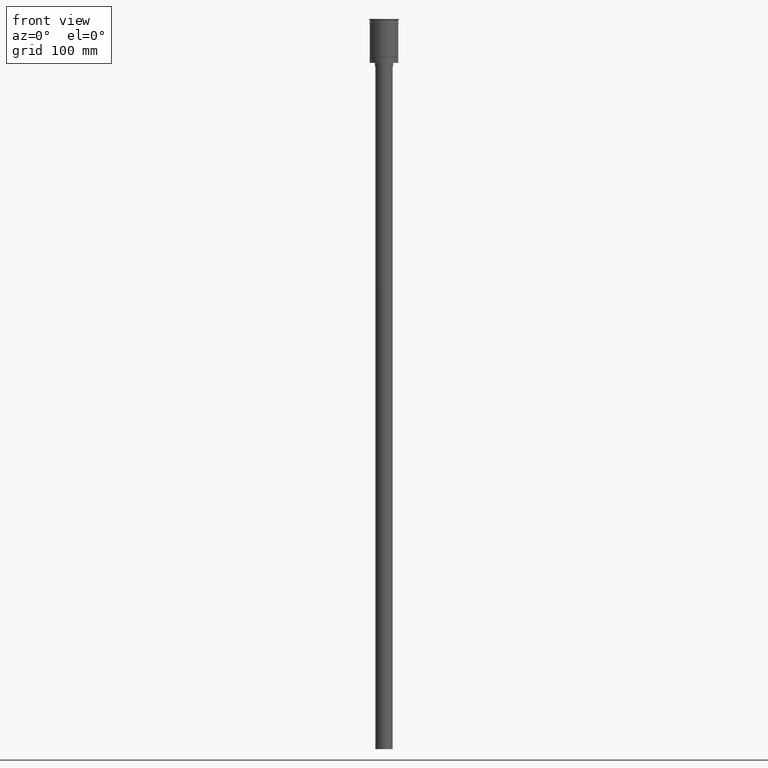
[diagram: clean part render]
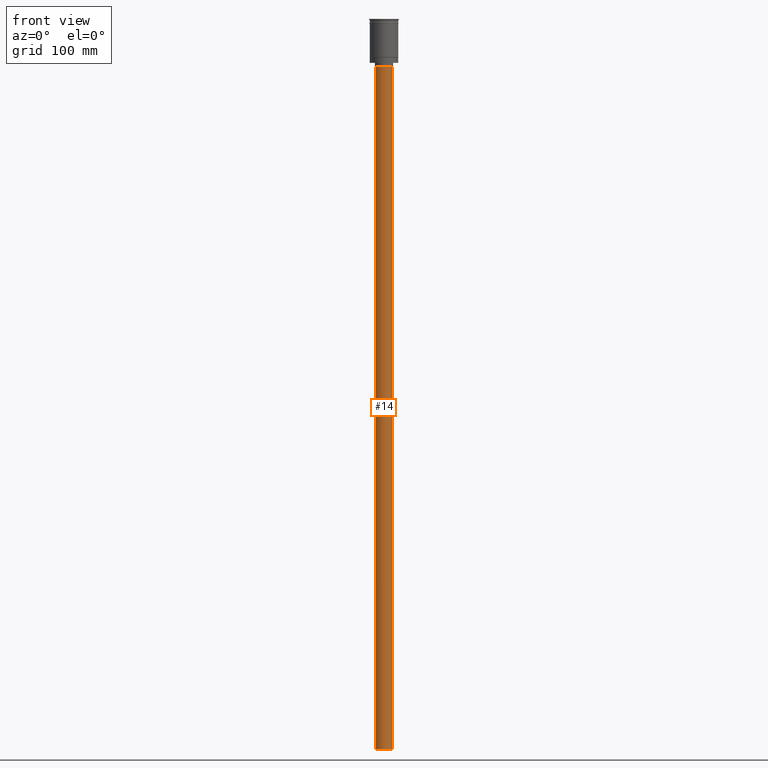
[diagram: same view with one face highlighted and labeled with its STEP entity id]
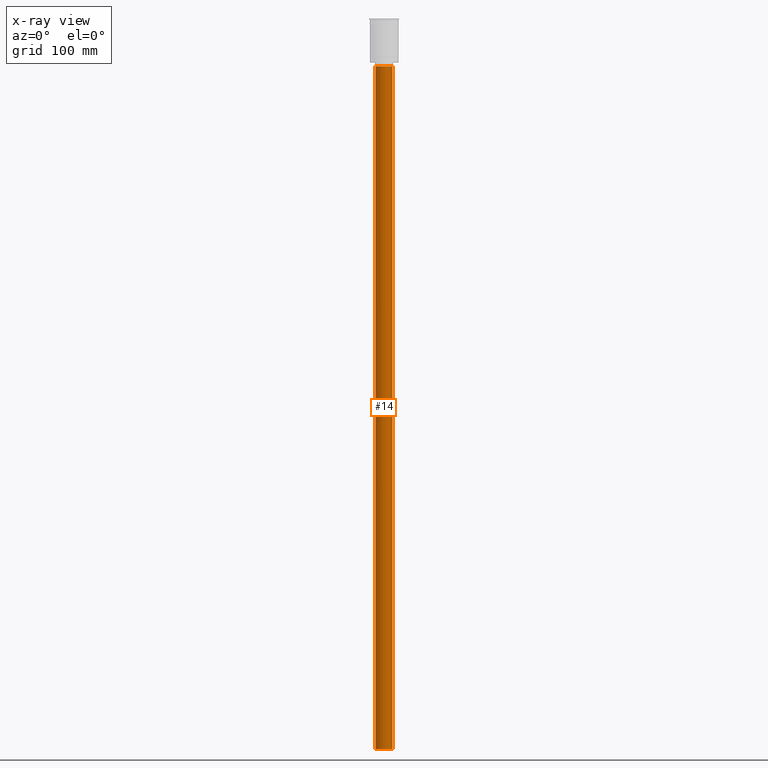
[diagram: x-ray of the same camera — body ghosted, the highlighted face saturated]
A machine part, front view. The second image highlights one B-rep face of the part: STEP entity #14.
The next image is the same camera in x-ray: the body ghosted, the highlighted face saturated — about 0% of this face is hidden behind the body in this view.
In plain terms, the highlighted cylindrical surface (edge-blend (fillet) strip) has radius 7.5 mm, axis along (-0, -0, 1).
Its self-contained STEP definition (entity closure, byte-faithful):
#14 = ADVANCED_FACE ( 'NONE', ( #953 ), #1355, .T. ) ;
#36 = AXIS2_PLACEMENT_3D ( 'NONE', #1243, #874, #1374 ) ;
#118 = LINE ( 'NONE', #1599, #1094 ) ;
#146 = EDGE_CURVE ( 'NONE', #1159, #873, #118, .T. ) ;
#214 = CARTESIAN_POINT ( 'NONE',  ( 7.500000000000000000, 0.000000000000000000, -638.5000000000000000 ) ) ;
#235 = DIRECTION ( 'NONE',  ( 0.000000000000000000, 0.000000000000000000, -1.000000000000000000 ) ) ;
#243 = CARTESIAN_POINT ( 'NONE',  ( -7.500000000000000000, 9.184850993605147944E-16, -638.5000000000000000 ) ) ;
#253 = DIRECTION ( 'NONE',  ( -0.000000000000000000, -0.000000000000000000, 1.000000000000000000 ) ) ;
#326 = VERTEX_POINT ( 'NONE', #361 ) ;
#333 = VERTEX_POINT ( 'NONE', #243 ) ;
#356 = EDGE_CURVE ( 'NONE', #1159, #333, #1536, .T. ) ;
#360 = LINE ( 'NONE', #610, #448 ) ;
#361 = CARTESIAN_POINT ( 'NONE',  ( -7.500000000000000000, 9.184850993605147944E-16, -41.50000000000000000 ) ) ;
#422 = AXIS2_PLACEMENT_3D ( 'NONE', #1565, #235, #697 ) ;
#448 = VECTOR ( 'NONE', #1111, 1000.000000000000000 ) ;
#610 = CARTESIAN_POINT ( 'NONE',  ( -7.500000000000000000, 9.184850993605147944E-16, -638.5000000000000000 ) ) ;
#697 = DIRECTION ( 'NONE',  ( -1.000000000000000000, 0.000000000000000000, 0.000000000000000000 ) ) ;
#873 = VERTEX_POINT ( 'NONE', #1314 ) ;
#874 = DIRECTION ( 'NONE',  ( 0.000000000000000000, 0.000000000000000000, -1.000000000000000000 ) ) ;
#950 = EDGE_CURVE ( 'NONE', #873, #326, #1458, .T. ) ;
#953 = FACE_OUTER_BOUND ( 'NONE', #1060, .T. ) ;
#966 = ORIENTED_EDGE ( 'NONE', *, *, #950, .T. ) ;
#978 = CARTESIAN_POINT ( 'NONE',  ( 0.000000000000000000, 0.000000000000000000, -638.5000000000000000 ) ) ;
#983 = AXIS2_PLACEMENT_3D ( 'NONE', #978, #253, #1496 ) ;
#1025 = EDGE_CURVE ( 'NONE', #333, #326, #360, .T. ) ;
#1046 = ORIENTED_EDGE ( 'NONE', *, *, #356, .F. ) ;
#1060 = EDGE_LOOP ( 'NONE', ( #1582, #1046, #1184, #966 ) ) ;
#1094 = VECTOR ( 'NONE', #1376, 1000.000000000000000 ) ;
#1111 = DIRECTION ( 'NONE',  ( -0.000000000000000000, -0.000000000000000000, 1.000000000000000000 ) ) ;
#1159 = VERTEX_POINT ( 'NONE', #214 ) ;
#1184 = ORIENTED_EDGE ( 'NONE', *, *, #146, .T. ) ;
#1243 = CARTESIAN_POINT ( 'NONE',  ( 0.000000000000000000, 0.000000000000000000, -41.50000000000000000 ) ) ;
#1314 = CARTESIAN_POINT ( 'NONE',  ( 7.500000000000000000, 0.000000000000000000, -41.50000000000000000 ) ) ;
#1355 = CYLINDRICAL_SURFACE ( 'NONE', #983, 7.500000000000000000 ) ;
#1374 = DIRECTION ( 'NONE',  ( -1.000000000000000000, 0.000000000000000000, 0.000000000000000000 ) ) ;
#1376 = DIRECTION ( 'NONE',  ( -0.000000000000000000, -0.000000000000000000, 1.000000000000000000 ) ) ;
#1458 = CIRCLE ( 'NONE', #36, 7.500000000000000000 ) ;
#1496 = DIRECTION ( 'NONE',  ( 1.000000000000000000, 0.000000000000000000, 0.000000000000000000 ) ) ;
#1536 = CIRCLE ( 'NONE', #422, 7.500000000000000000 ) ;
#1565 = CARTESIAN_POINT ( 'NONE',  ( 0.000000000000000000, 0.000000000000000000, -638.5000000000000000 ) ) ;
#1582 = ORIENTED_EDGE ( 'NONE', *, *, #1025, .F. ) ;
#1599 = CARTESIAN_POINT ( 'NONE',  ( 7.500000000000000000, 0.000000000000000000, -638.5000000000000000 ) ) ;